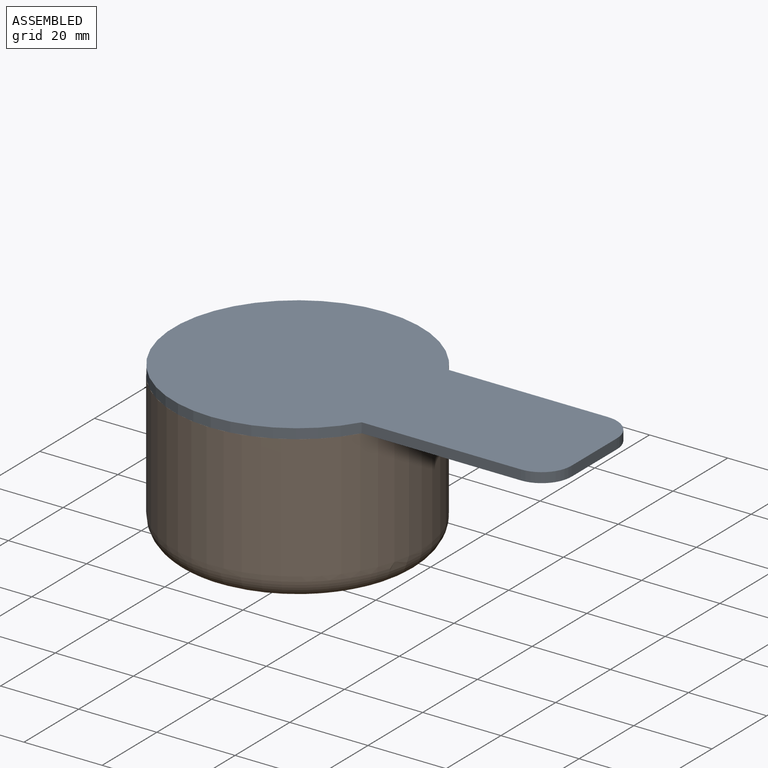
[diagram: assembled view]
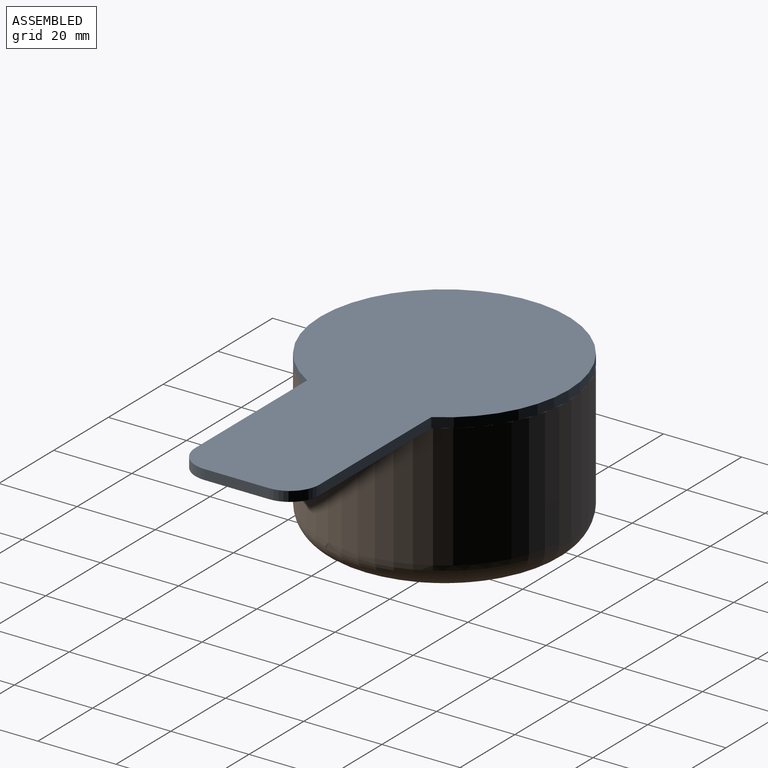
[diagram: assembled view, second angle]
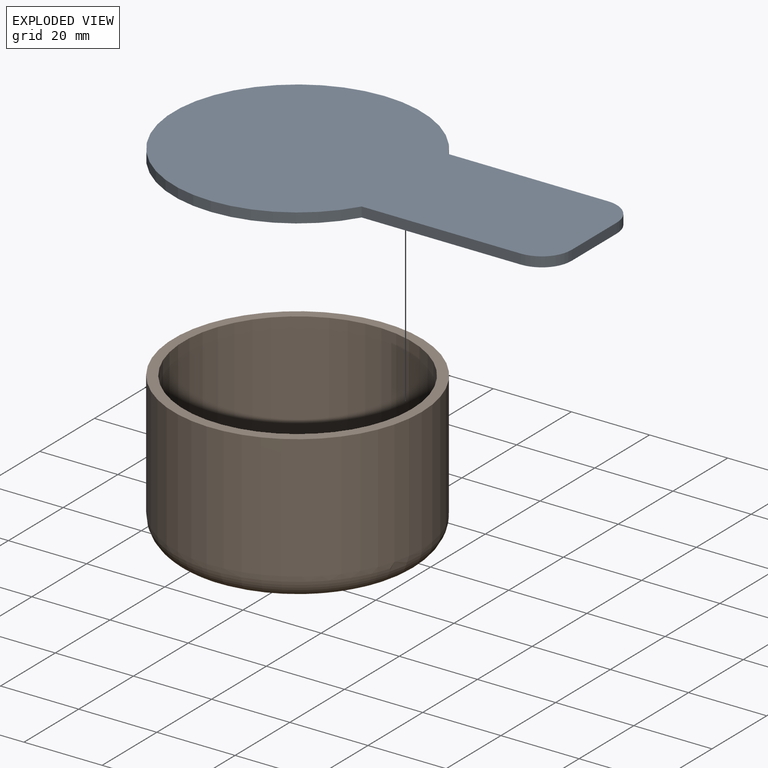
[diagram: exploded view]
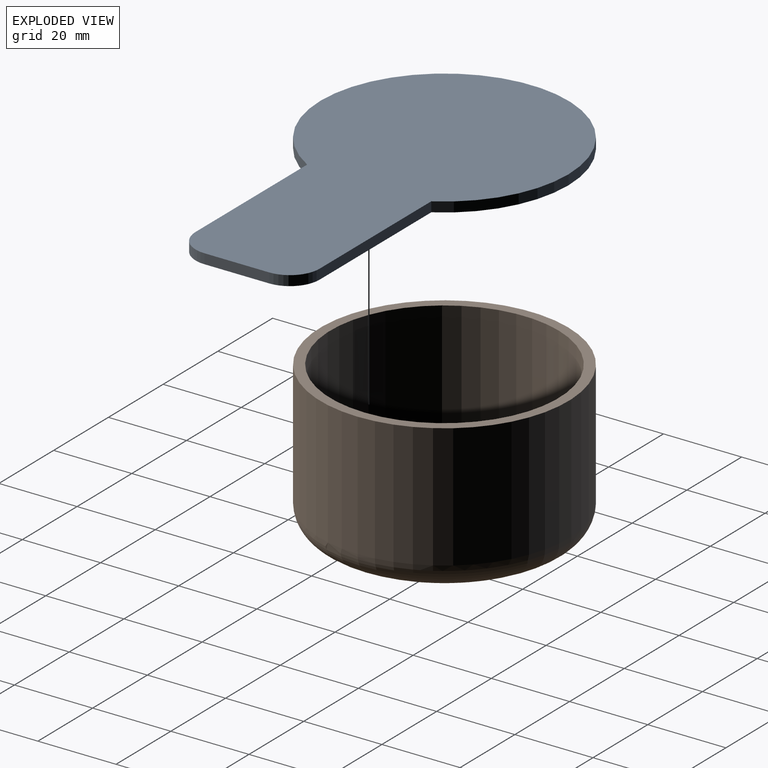
[diagram: exploded view, second angle]
ASSEMBLY  parts=2 mates=2
PART A: 8 faces, bbox 107.6x63.5x2.5 mm
  f0: cylinder r=31.75mm len=63.5mm, axis (0,0,-1), area 422.3mm2, adj f1,f5,f6,f7
  f1: plane 40.75x2.54mm, normal (0,-1,0), area 103.5mm2, adj f0,f2,f6,f7
  f2: cylinder r=7.62mm len=7.62mm, axis (0,0,-1), area 30.4mm2, adj f1,f3,f6,f7
  f3: plane 16.51x2.54mm, normal (1,0,0), area 41.9mm2, adj f2,f4,f6,f7
  f4: cylinder r=7.62mm len=7.62mm, axis (0,0,-1), area 30.4mm2, adj f3,f5,f6,f7
  f5: plane 40.75x2.54mm, normal (0,1,0), area 103.5mm2, adj f0,f4,f6,f7
  f6: plane 107.62x63.5mm, normal (0,0,1), area 4586.4mm2, adj f0,f1,f2,f3,f4,f5
  f7: plane 107.62x63.5mm, normal (0,0,-1), area 4586.4mm2, adj f0,f1,f2,f3,f4,f5
PART B: 7 faces, bbox 68.7x68.7x38.1 mm
  f0: plane 50.8x50.8mm, normal (0,0,-1), area 2026.8mm2, adj f1
  f1: torus R=25.4mm, axis (0,0,1), area 1845.2mm2, adj f0,f2
  f2: cylinder r=31.75mm len=63.5mm, axis (0,0,1), area 6333.8mm2, adj f1,f3
  f3: plane 63.5x63.5mm, normal (0,0,1), area 486.4mm2, adj f2,f6
  f4: plane 50.8x50.8mm, normal (0,0,1), area 2026.8mm2, adj f5
  f5: torus R=25.4mm, axis (0,0,1), area 1046.3mm2, adj f4,f6
  f6: cylinder r=29.21mm len=58.42mm, axis (0,0,1), area 5827.1mm2, adj f3,f5
PLACE A at identity
PLACE B at identity fixed
MATE parallel B.f1 <-> A.f0  axis (0,0,1) through (0,0,0)mm
MATE slider B.f1 <-> A.f0  axis (0,0,1) through (0,0,-15.87)mm
